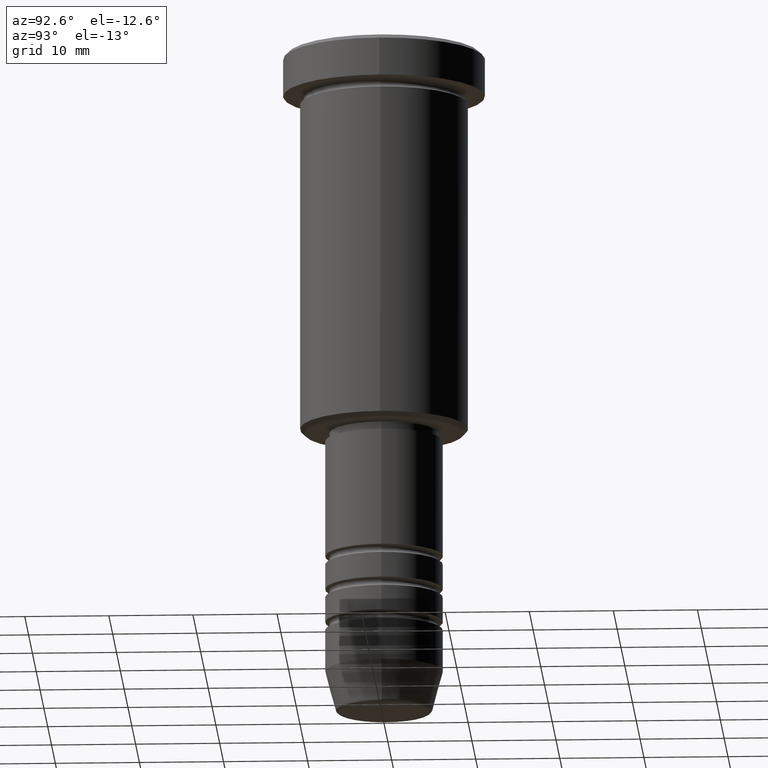
[diagram: clean part render]
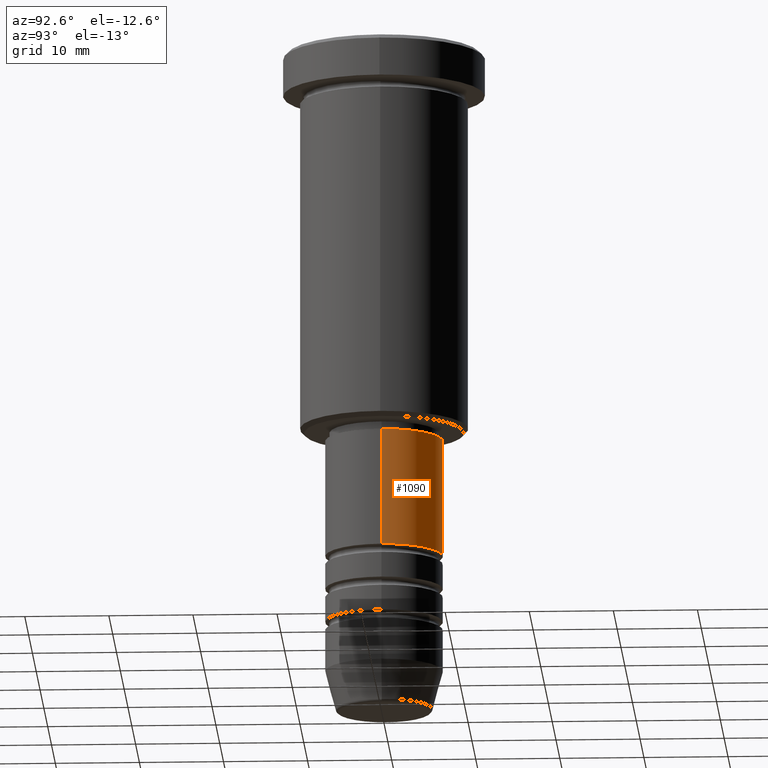
[diagram: same view with one face highlighted and labeled with its STEP entity id]
A machine part, auxiliary view. The second image highlights one B-rep face of the part: STEP entity #1090.
In plain terms, the highlighted cylindrical surface (partial cylindrical patch) has radius 7 mm, axis along (-0, -0, 1).
Its self-contained STEP definition (entity closure, byte-faithful):
#9 = CARTESIAN_POINT ( 'NONE',  ( -7.000000000000000888, 8.572527594031474176E-16, 0.000000000000000000 ) ) ;
#39 = CARTESIAN_POINT ( 'NONE',  ( -7.000000000000000888, 8.572527594031474176E-16, -61.00000000000000711 ) ) ;
#49 = DIRECTION ( 'NONE',  ( 1.000000000000000000, 0.000000000000000000, 0.000000000000000000 ) ) ;
#80 = ORIENTED_EDGE ( 'NONE', *, *, #1002, .T. ) ;
#86 = VECTOR ( 'NONE', #377, 1000.000000000000000 ) ;
#103 = CARTESIAN_POINT ( 'NONE',  ( -7.000000000000000888, 8.572527594031474176E-16, -47.00000000000000000 ) ) ;
#116 = VERTEX_POINT ( 'NONE', #103 ) ;
#166 = AXIS2_PLACEMENT_3D ( 'NONE', #769, #1042, #225 ) ;
#188 = AXIS2_PLACEMENT_3D ( 'NONE', #417, #396, #499 ) ;
#189 = VERTEX_POINT ( 'NONE', #345 ) ;
#225 = DIRECTION ( 'NONE',  ( 1.000000000000000000, 0.000000000000000000, 0.000000000000000000 ) ) ;
#227 = EDGE_CURVE ( 'NONE', #432, #116, #654, .T. ) ;
#264 = ORIENTED_EDGE ( 'NONE', *, *, #649, .T. ) ;
#299 = CARTESIAN_POINT ( 'NONE',  ( 7.000000000000000888, 0.000000000000000000, -47.00000000000000000 ) ) ;
#309 = CYLINDRICAL_SURFACE ( 'NONE', #188, 7.000000000000000888 ) ;
#345 = CARTESIAN_POINT ( 'NONE',  ( 7.000000000000000888, 0.000000000000000000, -61.00000000000000711 ) ) ;
#371 = DIRECTION ( 'NONE',  ( -0.000000000000000000, -0.000000000000000000, 1.000000000000000000 ) ) ;
#377 = DIRECTION ( 'NONE',  ( -0.000000000000000000, -0.000000000000000000, 1.000000000000000000 ) ) ;
#396 = DIRECTION ( 'NONE',  ( -0.000000000000000000, -0.000000000000000000, 1.000000000000000000 ) ) ;
#417 = CARTESIAN_POINT ( 'NONE',  ( 0.000000000000000000, 0.000000000000000000, 0.000000000000000000 ) ) ;
#432 = VERTEX_POINT ( 'NONE', #299 ) ;
#474 = VERTEX_POINT ( 'NONE', #39 ) ;
#499 = DIRECTION ( 'NONE',  ( 1.000000000000000000, 0.000000000000000000, 0.000000000000000000 ) ) ;
#512 = CARTESIAN_POINT ( 'NONE',  ( 0.000000000000000000, 0.000000000000000000, -47.00000000000000000 ) ) ;
#549 = ORIENTED_EDGE ( 'NONE', *, *, #971, .F. ) ;
#561 = AXIS2_PLACEMENT_3D ( 'NONE', #512, #1154, #49 ) ;
#582 = ORIENTED_EDGE ( 'NONE', *, *, #227, .F. ) ;
#649 = EDGE_CURVE ( 'NONE', #189, #474, #731, .T. ) ;
#654 = CIRCLE ( 'NONE', #561, 7.000000000000000888 ) ;
#731 = CIRCLE ( 'NONE', #166, 7.000000000000000888 ) ;
#769 = CARTESIAN_POINT ( 'NONE',  ( 0.000000000000000000, 0.000000000000000000, -61.00000000000000711 ) ) ;
#773 = FACE_OUTER_BOUND ( 'NONE', #780, .T. ) ;
#780 = EDGE_LOOP ( 'NONE', ( #264, #80, #582, #549 ) ) ;
#822 = LINE ( 'NONE', #9, #1058 ) ;
#830 = CARTESIAN_POINT ( 'NONE',  ( 7.000000000000000888, 0.000000000000000000, 0.000000000000000000 ) ) ;
#846 = LINE ( 'NONE', #830, #86 ) ;
#971 = EDGE_CURVE ( 'NONE', #189, #432, #846, .T. ) ;
#1002 = EDGE_CURVE ( 'NONE', #474, #116, #822, .T. ) ;
#1042 = DIRECTION ( 'NONE',  ( -0.000000000000000000, -0.000000000000000000, 1.000000000000000000 ) ) ;
#1058 = VECTOR ( 'NONE', #371, 1000.000000000000000 ) ;
#1090 = ADVANCED_FACE ( 'NONE', ( #773 ), #309, .T. ) ;
#1154 = DIRECTION ( 'NONE',  ( -0.000000000000000000, -0.000000000000000000, 1.000000000000000000 ) ) ;